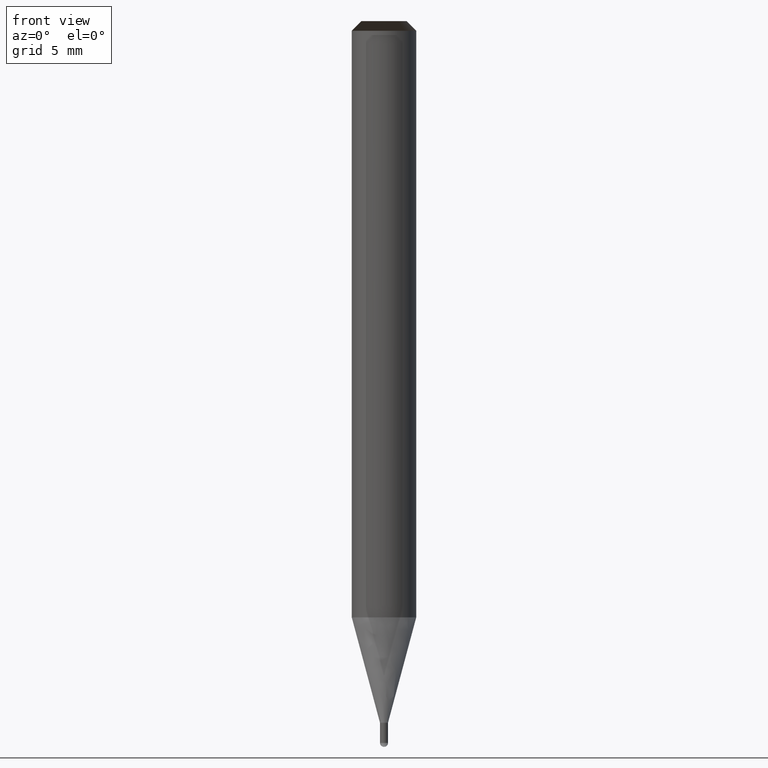
[diagram: clean part render]
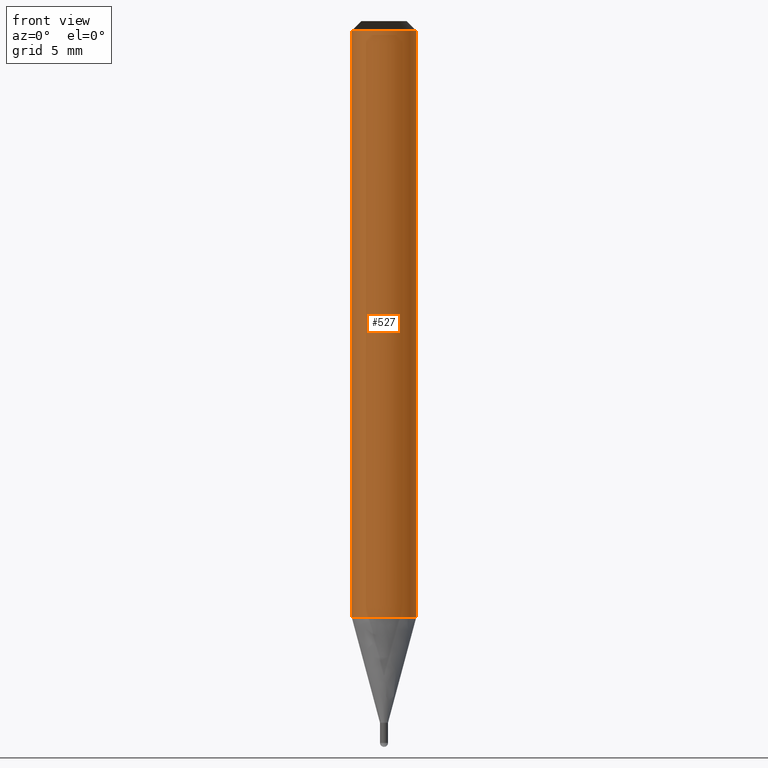
[diagram: same view with one face highlighted and labeled with its STEP entity id]
A machine part, front view. The second image highlights one B-rep face of the part: STEP entity #527.
In plain terms, the highlighted face is a freeform B-spline surface patch.
Its self-contained STEP definition (entity closure, byte-faithful):
#199=CARTESIAN_POINT('',(2.0,0.0,0.0));
#203=CARTESIAN_POINT('',(-2.0,0.0,0.0));
#204=CARTESIAN_POINT('',(2.0,0.0,36.37));
#208=CARTESIAN_POINT('',(-2.0,0.0,36.37));
#218=CARTESIAN_POINT('',(-2.0,-2.0,0.0));
#219=CARTESIAN_POINT('',(0.0,-2.0,0.0));
#220=CARTESIAN_POINT('',(2.0,-2.0,0.0));
#221=CARTESIAN_POINT('',(-2.0,-2.0,36.37));
#222=CARTESIAN_POINT('',(0.0,-2.0,36.37));
#223=CARTESIAN_POINT('',(2.0,-2.0,36.37));
#508=(
BOUNDED_SURFACE()
B_SPLINE_SURFACE(1,2,(
(#203,#218,#219,#220,#199),
(#208,#221,#222,#223,#204)
), .UNSPECIFIED.,.F.,.F.,.F.)
B_SPLINE_SURFACE_WITH_KNOTS((2,2),(3,2,3),(
0.0,1.0),(
0.0,0.5,1.0), .UNSPECIFIED.)
GEOMETRIC_REPRESENTATION_ITEM()
RATIONAL_B_SPLINE_SURFACE(((1.0,0.707106781187,1.0,0.707106781187,1.0),
(1.0,0.707106781187,1.0,0.707106781187,1.0)
))
REPRESENTATION_ITEM('')
SURFACE()
);
#509=(
BOUNDED_CURVE()
B_SPLINE_CURVE(1,(#208,#203),.UNSPECIFIED.,.F.,.F.)
B_SPLINE_CURVE_WITH_KNOTS((2,2),
(0.0,1.0),.UNSPECIFIED.)
CURVE()
GEOMETRIC_REPRESENTATION_ITEM()
RATIONAL_B_SPLINE_CURVE((1.0,1.0))
REPRESENTATION_ITEM('')
);
#510=(
BOUNDED_CURVE()
B_SPLINE_CURVE(2,(#203,#218,#219,#220,#199),.UNSPECIFIED.,.F.,.F.)
B_SPLINE_CURVE_WITH_KNOTS((3,2,3),
(0.0,0.5,1.0),.UNSPECIFIED.)
CURVE()
GEOMETRIC_REPRESENTATION_ITEM()
RATIONAL_B_SPLINE_CURVE((1.0,0.707106781187,1.0,0.707106781187,1.0))
REPRESENTATION_ITEM('')
);
#511=(
BOUNDED_CURVE()
B_SPLINE_CURVE(1,(#199,#204),.UNSPECIFIED.,.F.,.F.)
B_SPLINE_CURVE_WITH_KNOTS((2,2),
(0.0,1.0),.UNSPECIFIED.)
CURVE()
GEOMETRIC_REPRESENTATION_ITEM()
RATIONAL_B_SPLINE_CURVE((1.0,1.0))
REPRESENTATION_ITEM('')
);
#512=(
BOUNDED_CURVE()
B_SPLINE_CURVE(2,(#204,#223,#222,#221,#208),.UNSPECIFIED.,.F.,.F.)
B_SPLINE_CURVE_WITH_KNOTS((3,2,3),
(0.0,0.5,1.0),.UNSPECIFIED.)
CURVE()
GEOMETRIC_REPRESENTATION_ITEM()
RATIONAL_B_SPLINE_CURVE((1.0,0.707106781187,1.0,0.707106781187,1.0))
REPRESENTATION_ITEM('')
);
#513=VERTEX_POINT('',#199);
#514=VERTEX_POINT('',#203);
#515=VERTEX_POINT('',#204);
#516=VERTEX_POINT('',#208);
#517=EDGE_CURVE('',#516,#514,#509,.T.);
#518=EDGE_CURVE('',#514,#513,#510,.T.);
#519=EDGE_CURVE('',#513,#515,#511,.T.);
#520=EDGE_CURVE('',#515,#516,#512,.T.);
#521=ORIENTED_EDGE('',*,*,#517,.T.);
#522=ORIENTED_EDGE('',*,*,#518,.T.);
#523=ORIENTED_EDGE('',*,*,#519,.T.);
#524=ORIENTED_EDGE('',*,*,#520,.T.);
#525=EDGE_LOOP('',(#521,#522,#523,#524));
#526=FACE_OUTER_BOUND('',#525,.T.);
#527=ADVANCED_FACE('',(#526),#508,.T.);